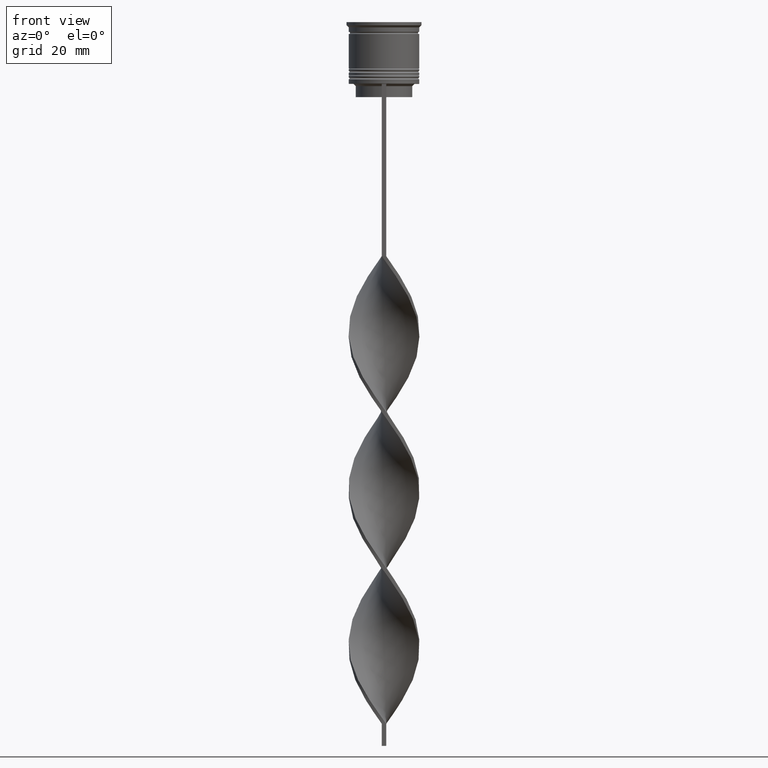
[diagram: clean part render]
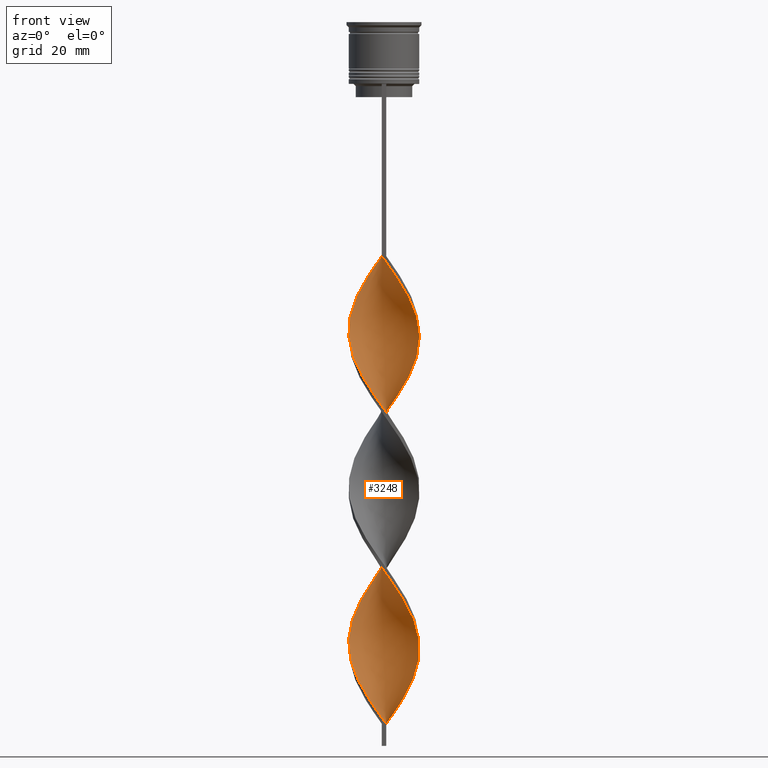
[diagram: same view with one face highlighted and labeled with its STEP entity id]
A machine part, front view. The second image highlights one B-rep face of the part: STEP entity #3248.
In plain terms, the highlighted face is a freeform B-spline surface patch.
Its self-contained STEP definition (entity closure, byte-faithful):
#8 = CARTESIAN_POINT ( 'NONE',  ( 2.152367326908981138, 7.721224960461567477, -85.97777777777777430 ) ) ;
#30 = CARTESIAN_POINT ( 'NONE',  ( -7.144131640230918734, -3.731105258425338800, -75.37777777777777999 ) ) ;
#37 = CARTESIAN_POINT ( 'NONE',  ( 7.553108702445512357, 2.812527737008065021, -75.37777777777777999 ) ) ;
#47 = CARTESIAN_POINT ( 'NONE',  ( -3.586635261345270997, -7.217742780431598781, -82.44444444444444287 ) ) ;
#56 = CARTESIAN_POINT ( 'NONE',  ( -6.803297758105514070, -4.321446859207497049, -113.0666666666666629 ) ) ;
#58 = CARTESIAN_POINT ( 'NONE',  ( 0.4999999999999989453, -7.999999999999996447, -88.33333333333332860 ) ) ;
#59 = ORIENTED_EDGE ( 'NONE', *, *, #777, .F. ) ;
#63 = CARTESIAN_POINT ( 'NONE',  ( 2.152367326908981138, 7.721224960461567477, -156.6444444444444457 ) ) ;
#72 = CARTESIAN_POINT ( 'NONE',  ( 2.963900771692545177, 7.495002038555971247, -155.4666666666666686 ) ) ;
#88 = CARTESIAN_POINT ( 'NONE',  ( 7.762960627548698866, -1.996607696852002345, -102.4666666666666686 ) ) ;
#91 = VERTEX_POINT ( 'NONE', #2606 ) ;
#97 = CARTESIAN_POINT ( 'NONE',  ( 5.610593300639727055, -5.724617263609565576, -133.0888888888889028 ) ) ;
#101 = CARTESIAN_POINT ( 'NONE',  ( -6.279723906998579963, 4.981472438132166225, -62.42222222222221717 ) ) ;
#107 = CARTESIAN_POINT ( 'NONE',  ( 5.610593300639725278, 5.724617263609557583, -114.2444444444444542 ) ) ;
#112 = CARTESIAN_POINT ( 'NONE',  ( -6.279723906998587957, -4.981472438132167113, -114.2444444444444542 ) ) ;
#114 = CARTESIAN_POINT ( 'NONE',  ( -7.178203230275506108, 3.566987298107779925, -64.77777777777778567 ) ) ;
#130 = CARTESIAN_POINT ( 'NONE',  ( 0.5000000000000008882, 8.000000000000003553, -88.33333333333332860 ) ) ;
#132 = CARTESIAN_POINT ( 'NONE',  ( -1.340833882125411103, 7.947447882367156602, -54.17777777777777715 ) ) ;
#142 = CARTESIAN_POINT ( 'NONE',  ( -7.763755626116584985, -2.164223167868968734, -143.6888888888888971 ) ) ;
#157 = CARTESIAN_POINT ( 'NONE',  ( -7.903910931312356780, -1.333488653825362746, -142.5111111111111200 ) ) ;
#191 = CARTESIAN_POINT ( 'NONE',  ( 7.762960627548706860, 1.996607696852002789, -74.20000000000000284 ) ) ;
#194 = CARTESIAN_POINT ( 'NONE',  ( -0.4999999999999998890, 7.999999999999996447, -123.6666666666666714 ) ) ;
#217 = B_SPLINE_CURVE_WITH_KNOTS ( 'NONE', 3,
 ( #1953, #3370, #785, #3305 ),
 .UNSPECIFIED., .F., .F.,
 ( 4, 4 ),
 ( 0.000000000000000000, 1.000000000000000000 ),
 .UNSPECIFIED. ) ;
#220 = CARTESIAN_POINT ( 'NONE',  ( -6.678203230275506996, -4.433012701892216079, -147.2222222222222285 ) ) ;
#240 = CARTESIAN_POINT ( 'NONE',  ( 0.5000000000000008882, 8.000000000000003553, -159.0000000000000000 ) ) ;
#252 = CARTESIAN_POINT ( 'NONE',  ( 7.553108702445513245, 2.812527737008064577, -146.0444444444443945 ) ) ;
#266 = CARTESIAN_POINT ( 'NONE',  ( 3.586635261345271442, -7.217742780431606775, -129.5555555555555429 ) ) ;
#287 = CARTESIAN_POINT ( 'NONE',  ( -2.007605570224932467, 7.805721184925816125, -91.86666666666666003 ) ) ;
#302 = CARTESIAN_POINT ( 'NONE',  ( 7.762960627548706860, 1.996607696852002789, -144.8666666666666742 ) ) ;
#315 = CARTESIAN_POINT ( 'NONE',  ( -8.008439394580010529, 0.3389667584570925096, -69.48888888888889426 ) ) ;
#321 = CARTESIAN_POINT ( 'NONE',  ( 8.044066236508134793, -0.5027541397817586466, -70.66666666666667140 ) ) ;
#323 =( BOUNDED_CURVE ( )  B_SPLINE_CURVE ( 2, ( #3481, #3199, #1150, #2561, #3498, #1445, #612, #1460, #912, #630, #2069, #1770, #860, #2316, #3446, #321, #1495, #2863, #2595, #37, #3147, #3754, #1208, #1187, #3461, #2335, #3556, #1585, #974, #2110, #130, #3010, #2972, #1845, #1566, #652, #1515, #2127, #2652, #3253, #3269, #992, #416, #2169, #375, #1545, #1017, #2144, #1812, #3029, #1298, #56, #112, #2409, #684, #1277, #3515, #667, #710, #2728, #3575, #956, #2955, #2424, #2688, #1224, #1826, #2366, #97, #1263, #2991, #2443, #3308, #1242, #3602, #933, #400, #2708, #3286, #1867, #2092, #727, #1886, #3235, #359, #1529, #2669, #72, #2389, #3536, #438 ),
 .UNSPECIFIED., .F., .T. ) 
 B_SPLINE_CURVE_WITH_KNOTS ( ( 3, 2, 2, 2, 2, 2, 2, 2, 2, 2, 2, 2, 2, 2, 2, 2, 2, 2, 2, 2, 2, 2, 2, 2, 2, 2, 2, 2, 2, 2, 2, 2, 2, 2, 2, 2, 2, 2, 2, 2, 2, 2, 2, 2, 2, 3 ),
 ( 0.000000000000000000, 0.01666666666666666644, 0.03333333333333333287, 0.05000000000000000971, 0.06666666666666666574, 0.08333333333333332871, 0.1000000000000000194, 0.1166666666666666546, 0.1333333333333333315, 0.1499999999999999944, 0.1666666666666666574, 0.1833333333333333204, 0.2000000000000000389, 0.2166666666666666741, 0.2333333333333333093, 0.2500000000000000000, 0.2666666666666666630, 0.2833333333333333259, 0.2999999999999999889, 0.3166666666666666519, 0.3333333333333333148, 0.3499999999999999223, 0.3666666666666666408, 0.3833333333333333592, 0.4000000000000000777, 0.4166666666666666852, 0.4333333333333333481, 0.4500000000000000111, 0.4666666666666666186, 0.4833333333333333370, 0.5000000000000000000, 0.5166666666666667185, 0.5333333333333333259, 0.5500000000000000444, 0.5666666666666666519, 0.5833333333333333703, 0.5999999999999999778, 0.6166666666666666963, 0.6333333333333333037, 0.6500000000000000222, 0.6666666666666666297, 0.6833333333333332371, 0.6999999999999998446, 0.7166666666666666741, 0.7333333333333332815, 0.7500000000000000000 ),
 .UNSPECIFIED. ) 
 CURVE ( )  GEOMETRIC_REPRESENTATION_ITEM ( )  RATIONAL_B_SPLINE_CURVE ( ( 1.000000000000000000, 0.9945218953682732899, 1.000000000000000000, 0.9945218953682732899, 1.000000000000000000, 0.9945218953682732899, 1.000000000000000000, 0.9945218953682732899, 1.000000000000000000, 0.9945218953682732899, 1.000000000000000000, 0.9945218953682732899, 1.000000000000000000, 0.9945218953682732899, 1.000000000000000000, 0.9945218953682732899, 1.000000000000000000, 0.9945218953682732899, 1.000000000000000000, 0.9945218953682732899, 1.000000000000000000, 0.9945218953682732899, 1.000000000000000000, 0.9945218953682732899, 1.000000000000000000, 0.9945218953682732899, 1.000000000000000000, 0.9945218953682732899, 1.000000000000000000, 0.9945218953682732899, 1.000000000000000000, 0.9945218953682732899, 1.000000000000000000, 0.9945218953682732899, 1.000000000000000000, 0.9945218953682732899, 1.000000000000000000, 0.9945218953682732899, 1.000000000000000000, 0.9945218953682732899, 1.000000000000000000, 0.9945218953682732899, 1.000000000000000000, 0.9945218953682732899, 1.000000000000000000, 0.9945218953682732899, 1.000000000000000000, 0.9945218953682732899, 1.000000000000000000, 0.9945218953682732899, 1.000000000000000000, 0.9945218953682732899, 1.000000000000000000, 0.9945218953682732899, 1.000000000000000000, 0.9945218953682732899, 1.000000000000000000, 0.9945218953682732899, 1.000000000000000000, 0.9945218953682732899, 1.000000000000000000, 0.9945218953682732899, 1.000000000000000000, 0.9945218953682732899, 1.000000000000000000, 0.9945218953682732899, 1.000000000000000000, 0.9945218953682732899, 1.000000000000000000, 0.9945218953682732899, 1.000000000000000000, 0.9945218953682732899, 1.000000000000000000, 0.9945218953682732899, 1.000000000000000000, 0.9945218953682732899, 1.000000000000000000, 0.9945218953682732899, 1.000000000000000000, 0.9945218953682732899, 1.000000000000000000, 0.9945218953682732899, 1.000000000000000000, 0.9945218953682732899, 1.000000000000000000, 0.9945218953682732899, 1.000000000000000000, 0.9945218953682732899, 1.000000000000000000, 0.9945218953682732899, 1.000000000000000000 ) ) 
 REPRESENTATION_ITEM ( '' )  );
#337 = CARTESIAN_POINT ( 'NONE',  ( 8.008439394580010529, -0.3389667584570969505, -104.8222222222222229 ) ) ;
#347 = CARTESIAN_POINT ( 'NONE',  ( -5.008911780959351745, -6.314314381860024028, -80.08888888888888857 ) ) ;
#354 = CARTESIAN_POINT ( 'NONE',  ( 1.340833882125414211, 7.947447882367162819, -157.8222222222221660 ) ) ;
#359 = CARTESIAN_POINT ( 'NONE',  ( 5.106790515527261931, 6.178243328853344707, -151.9333333333333371 ) ) ;
#360 = CARTESIAN_POINT ( 'NONE',  ( -5.610593300639724390, -5.724617263609558471, -78.91111111111111143 ) ) ;
#366 = CARTESIAN_POINT ( 'NONE',  ( -7.762960627548698866, 1.996607696852001457, -67.13333333333333997 ) ) ;
#375 = CARTESIAN_POINT ( 'NONE',  ( -7.903910931312363886, 1.333488653825370962, -104.8222222222222229 ) ) ;
#380 = CARTESIAN_POINT ( 'NONE',  ( 6.279723906998579075, -4.981472438132168001, -97.75555555555555998 ) ) ;
#392 = CARTESIAN_POINT ( 'NONE',  ( 4.457430975162857578, -6.714988640649844243, -94.22222222222221433 ) ) ;
#400 = CARTESIAN_POINT ( 'NONE',  ( 8.008439394580017634, 0.3389667584570904557, -142.5111111111111200 ) ) ;
#403 = CARTESIAN_POINT ( 'NONE',  ( 7.453943633173752303, 2.947664213147153767, -109.5333333333333456 ) ) ;
#410 = CARTESIAN_POINT ( 'NONE',  ( -8.008439394580010529, 0.3389667584570925096, -140.1555555555555657 ) ) ;
#416 = CARTESIAN_POINT ( 'NONE',  ( -7.453943633173757632, 2.947664213147157763, -102.4666666666666686 ) ) ;
#418 = CARTESIAN_POINT ( 'NONE',  ( -7.903910931312356780, -1.333488653825362746, -71.84444444444444855 ) ) ;
#429 = CARTESIAN_POINT ( 'NONE',  ( -6.678203230275506996, -4.433012701892216079, -147.2222222222222285 ) ) ;
#436 = CARTESIAN_POINT ( 'NONE',  ( 6.678203230275512325, -4.433012701892221408, -64.77777777777778567 ) ) ;
#438 = CARTESIAN_POINT ( 'NONE',  ( 0.5000000000000008882, 8.000000000000003553, -159.0000000000000000 ) ) ;
#441 = CARTESIAN_POINT ( 'NONE',  ( -7.553108702445505251, 2.812527737008064577, -136.6222222222222342 ) ) ;
#461 = CARTESIAN_POINT ( 'NONE',  ( 7.763755626116591202, -2.164223167868972286, -68.31111111111111711 ) ) ;
#473 = CARTESIAN_POINT ( 'NONE',  ( -7.903910931312356780, -1.333488653825362746, -142.5111111111111200 ) ) ;
#477 = CARTESIAN_POINT ( 'NONE',  ( 7.903910931312363886, -1.333488653825366521, -69.48888888888889426 ) ) ;
#487 = CARTESIAN_POINT ( 'NONE',  ( -4.297773521152310039, -6.766028581145813625, -151.9333333333333371 ) ) ;
#493 = CARTESIAN_POINT ( 'NONE',  ( 5.008911780959353521, -6.314314381860030245, -61.24444444444443292 ) ) ;
#498 = CARTESIAN_POINT ( 'NONE',  ( -7.762960627548698866, 1.996607696852001457, -137.8000000000000114 ) ) ;
#523 = CARTESIAN_POINT ( 'NONE',  ( -2.007605570224932023, -7.805721184925808132, -155.4666666666666686 ) ) ;
#538 = CARTESIAN_POINT ( 'NONE',  ( -0.3408338821254087714, 8.052552117632844286, -89.51111111111111995 ) ) ;
#553 =( BOUNDED_SURFACE ( )  B_SPLINE_SURFACE ( 1, 2, ( 
 ( #3659, #3371, #786, #2461, #3027, #3386, #1322, #493, #3067, #803, #436, #1034, #2185, #461, #477, #1647, #1630, #2785, #191, #1359, #2497, #2225, #2803, #3731, #1159, #1974, #3425, #2538, #8, #1124, #3125, #538, #1736, #287, #3693, #1103, #554, #2873, #3178, #838, #2029, #606, #3453, #870, #1704, #1718, #591, #3403, #2844, #822, #1400, #3193, #2327, #1992, #1179, #1416, #3140, #1751, #3473, #1143, #888, #2310, #2047, #2892, #2857, #266, #1765, #2604, #2295, #1454, #1436, #2574, #1470, #2255, #3439, #854, #2908, #2277, #302, #252, #2010, #2552, #2589, #3711, #3157, #3747, #572, #2344, #63, #354, #1488 ),
 ( #1835, #950, #983, #1234, #2380, #3490, #3528, #923, #2701, #2982, #1806, #662, #366, #3207, #315, #2106, #2625, #2084, #3246, #30, #905, #3566, #2964, #701, #1821, #47, #1859, #677, #1272, #1200, #3262, #1536, #1784, #2062, #2681, #392, #621, #2404, #3507, #643, #3226, #2932, #88, #2949, #337, #1522, #1560, #1257, #3550, #966, #1510, #2643, #107, #1217, #2121, #2660, #2416, #2134, #3278, #2359, #1314, #2762, #3021, #2217, #1934, #2159, #2179, #1065, #2237, #1641, #1028, #3614, #3364, #781, #410, #1083, #473, #142, #2736, #3077, #429, #2455, #3319, #1597, #487, #2199, #3381, #738, #1288, #1899, #2490 ) ),
 .UNSPECIFIED., .F., .F., .F. ) 
 B_SPLINE_SURFACE_WITH_KNOTS ( ( 2, 2 ),
 ( 3, 2, 2, 2, 2, 2, 2, 2, 2, 2, 2, 2, 2, 2, 2, 2, 2, 2, 2, 2, 2, 2, 2, 2, 2, 2, 2, 2, 2, 2, 2, 2, 2, 2, 2, 2, 2, 2, 2, 2, 2, 2, 2, 2, 2, 3 ),
 ( 0.000000000000000000, 1.000000000000000000 ),
 ( 0.000000000000000000, 0.01666666666666666644, 0.03333333333333333287, 0.05000000000000000278, 0.06666666666666666574, 0.08333333333333332871, 0.1000000000000000056, 0.1166666666666666685, 0.1333333333333333315, 0.1499999999999999944, 0.1666666666666666574, 0.1833333333333333204, 0.2000000000000000111, 0.2166666666666666741, 0.2333333333333333370, 0.2500000000000000000, 0.2666666666666666630, 0.2833333333333333259, 0.2999999999999999889, 0.3166666666666666519, 0.3333333333333333148, 0.3499999999999999778, 0.3666666666666666408, 0.3833333333333333592, 0.4000000000000000222, 0.4166666666666666852, 0.4333333333333333481, 0.4500000000000000111, 0.4666666666666666741, 0.4833333333333333370, 0.5000000000000000000, 0.5166666666666667185, 0.5333333333333333259, 0.5500000000000000444, 0.5666666666666666519, 0.5833333333333333703, 0.5999999999999999778, 0.6166666666666666963, 0.6333333333333333037, 0.6500000000000000222, 0.6666666666666666297, 0.6833333333333333481, 0.6999999999999999556, 0.7166666666666666741, 0.7333333333333332815, 0.7500000000000000000 ),
 .UNSPECIFIED. ) 
 GEOMETRIC_REPRESENTATION_ITEM ( )  RATIONAL_B_SPLINE_SURFACE ( (
 ( 1.000000000000000000, 0.9945218953682732899, 1.000000000000000000, 0.9945218953682732899, 1.000000000000000000, 0.9945218953682732899, 1.000000000000000000, 0.9945218953682732899, 1.000000000000000000, 0.9945218953682732899, 1.000000000000000000, 0.9945218953682732899, 1.000000000000000000, 0.9945218953682732899, 1.000000000000000000, 0.9945218953682732899, 1.000000000000000000, 0.9945218953682732899, 1.000000000000000000, 0.9945218953682732899, 1.000000000000000000, 0.9945218953682732899, 1.000000000000000000, 0.9945218953682732899, 1.000000000000000000, 0.9945218953682732899, 1.000000000000000000, 0.9945218953682732899, 1.000000000000000000, 0.9945218953682732899, 1.000000000000000000, 0.9945218953682732899, 1.000000000000000000, 0.9945218953682732899, 1.000000000000000000, 0.9945218953682732899, 1.000000000000000000, 0.9945218953682732899, 1.000000000000000000, 0.9945218953682732899, 1.000000000000000000, 0.9945218953682732899, 1.000000000000000000, 0.9945218953682732899, 1.000000000000000000, 0.9945218953682732899, 1.000000000000000000, 0.9945218953682732899, 1.000000000000000000, 0.9945218953682732899, 1.000000000000000000, 0.9945218953682732899, 1.000000000000000000, 0.9945218953682732899, 1.000000000000000000, 0.9945218953682732899, 1.000000000000000000, 0.9945218953682732899, 1.000000000000000000, 0.9945218953682732899, 1.000000000000000000, 0.9945218953682732899, 1.000000000000000000, 0.9945218953682732899, 1.000000000000000000, 0.9945218953682732899, 1.000000000000000000, 0.9945218953682732899, 1.000000000000000000, 0.9945218953682732899, 1.000000000000000000, 0.9945218953682732899, 1.000000000000000000, 0.9945218953682732899, 1.000000000000000000, 0.9945218953682732899, 1.000000000000000000, 0.9945218953682732899, 1.000000000000000000, 0.9945218953682732899, 1.000000000000000000, 0.9945218953682732899, 1.000000000000000000, 0.9945218953682732899, 1.000000000000000000, 0.9945218953682732899, 1.000000000000000000, 0.9945218953682732899, 1.000000000000000000, 0.9945218953682732899, 1.000000000000000000),
 ( 1.000000000000000000, 0.9945218953682732899, 1.000000000000000000, 0.9945218953682732899, 1.000000000000000000, 0.9945218953682732899, 1.000000000000000000, 0.9945218953682732899, 1.000000000000000000, 0.9945218953682732899, 1.000000000000000000, 0.9945218953682732899, 1.000000000000000000, 0.9945218953682732899, 1.000000000000000000, 0.9945218953682732899, 1.000000000000000000, 0.9945218953682732899, 1.000000000000000000, 0.9945218953682732899, 1.000000000000000000, 0.9945218953682732899, 1.000000000000000000, 0.9945218953682732899, 1.000000000000000000, 0.9945218953682732899, 1.000000000000000000, 0.9945218953682732899, 1.000000000000000000, 0.9945218953682732899, 1.000000000000000000, 0.9945218953682732899, 1.000000000000000000, 0.9945218953682732899, 1.000000000000000000, 0.9945218953682732899, 1.000000000000000000, 0.9945218953682732899, 1.000000000000000000, 0.9945218953682732899, 1.000000000000000000, 0.9945218953682732899, 1.000000000000000000, 0.9945218953682732899, 1.000000000000000000, 0.9945218953682732899, 1.000000000000000000, 0.9945218953682732899, 1.000000000000000000, 0.9945218953682732899, 1.000000000000000000, 0.9945218953682732899, 1.000000000000000000, 0.9945218953682732899, 1.000000000000000000, 0.9945218953682732899, 1.000000000000000000, 0.9945218953682732899, 1.000000000000000000, 0.9945218953682732899, 1.000000000000000000, 0.9945218953682732899, 1.000000000000000000, 0.9945218953682732899, 1.000000000000000000, 0.9945218953682732899, 1.000000000000000000, 0.9945218953682732899, 1.000000000000000000, 0.9945218953682732899, 1.000000000000000000, 0.9945218953682732899, 1.000000000000000000, 0.9945218953682732899, 1.000000000000000000, 0.9945218953682732899, 1.000000000000000000, 0.9945218953682732899, 1.000000000000000000, 0.9945218953682732899, 1.000000000000000000, 0.9945218953682732899, 1.000000000000000000, 0.9945218953682732899, 1.000000000000000000, 0.9945218953682732899, 1.000000000000000000, 0.9945218953682732899, 1.000000000000000000, 0.9945218953682732899, 1.000000000000000000) ) ) 
 REPRESENTATION_ITEM ( '' )  SURFACE ( )  );
#554 = CARTESIAN_POINT ( 'NONE',  ( -4.297773521152312703, 6.766028581145818954, -95.40000000000000568 ) ) ;
#572 = CARTESIAN_POINT ( 'NONE',  ( 3.710665873427705375, 7.104995339602909077, -154.2888888888888914 ) ) ;
#591 = CARTESIAN_POINT ( 'NONE',  ( -8.008439394580017634, -0.3389667584570877357, -107.1777777777777771 ) ) ;
#606 = CARTESIAN_POINT ( 'NONE',  ( -7.144131640230920510, 3.731105258425349014, -101.2888888888888914 ) ) ;
#612 = CARTESIAN_POINT ( 'NONE',  ( 4.297773521152313592, -6.766028581145818954, -60.06666666666666288 ) ) ;
#621 = CARTESIAN_POINT ( 'NONE',  ( 5.106790515527256602, -6.178243328853340266, -95.40000000000000568 ) ) ;
#630 = CARTESIAN_POINT ( 'NONE',  ( 6.212274820320101476, -5.134920145359100019, -63.60000000000000142 ) ) ;
#643 = CARTESIAN_POINT ( 'NONE',  ( 6.803297758105506965, -4.321446859207495272, -98.93333333333332291 ) ) ;
#652 = CARTESIAN_POINT ( 'NONE',  ( -3.586635261345270109, 7.217742780431608551, -94.22222222222221433 ) ) ;
#653 = CARTESIAN_POINT ( 'NONE',  ( 7.553108702445503475, -2.812527737008069018, -101.2888888888888914 ) ) ;
#662 = CARTESIAN_POINT ( 'NONE',  ( -7.553108702445506140, 2.812527737008064133, -65.95555555555556282 ) ) ;
#664 = ORIENTED_EDGE ( 'NONE', *, *, #2926, .T. ) ;
#667 = CARTESIAN_POINT ( 'NONE',  ( -2.963900771692546510, -7.495002038555971247, -120.1333333333333400 ) ) ;
#669 = CARTESIAN_POINT ( 'NONE',  ( -8.008439394580010529, 0.3389667584570925096, -69.48888888888889426 ) ) ;
#677 = CARTESIAN_POINT ( 'NONE',  ( -2.007605570224932023, -7.805721184925808132, -84.79999999999998295 ) ) ;
#684 = CARTESIAN_POINT ( 'NONE',  ( -5.106790515527262819, -6.178243328853344707, -116.6000000000000085 ) ) ;
#689 = CARTESIAN_POINT ( 'NONE',  ( 7.903910931312356780, 1.333488653825360082, -107.1777777777777771 ) ) ;
#701 = CARTESIAN_POINT ( 'NONE',  ( -5.008911780959350857, -6.314314381860024028, -80.08888888888890278 ) ) ;
#710 = CARTESIAN_POINT ( 'NONE',  ( -2.152367326908982026, -7.721224960461567477, -121.3111111111111171 ) ) ;
#712 = CARTESIAN_POINT ( 'NONE',  ( -2.797120415785101954, -7.511731982678703012, -83.62222222222222001 ) ) ;
#727 = CARTESIAN_POINT ( 'NONE',  ( 6.803297758105513182, 4.321446859207497937, -148.4000000000000057 ) ) ;
#729 = CARTESIAN_POINT ( 'NONE',  ( -4.297773521152310039, -6.766028581145813625, -81.26666666666666572 ) ) ;
#738 = CARTESIAN_POINT ( 'NONE',  ( -2.007605570224932023, -7.805721184925808132, -155.4666666666666686 ) ) ;
#772 = CARTESIAN_POINT ( 'NONE',  ( -3.710665873427700490, 7.104995339602903748, -128.3777777777777942 ) ) ;
#777 = EDGE_CURVE ( 'NONE', #2960, #1990, #217, .T. ) ;
#781 = CARTESIAN_POINT ( 'NONE',  ( -7.972812552651889817, 1.180687656695941001, -138.9777777777777885 ) ) ;
#785 = CARTESIAN_POINT ( 'NONE',  ( 0.4999999999999995559, -2.666666666666663410, -159.0000000000000000 ) ) ;
#786 = CARTESIAN_POINT ( 'NONE',  ( 1.174219726175172562, -7.929136651279328873, -55.35555555555555429 ) ) ;
#803 = CARTESIAN_POINT ( 'NONE',  ( 6.212274820320101476, -5.134920145359099131, -63.60000000000000853 ) ) ;
#808 = CARTESIAN_POINT ( 'NONE',  ( -2.152367326908976697, 7.721224960461563036, -126.0222222222222257 ) ) ;
#822 = CARTESIAN_POINT ( 'NONE',  ( -7.553108702445514133, -2.812527737008061912, -110.7111111111110944 ) ) ;
#838 = CARTESIAN_POINT ( 'NONE',  ( -6.212274820320100588, 5.134920145359100019, -98.93333333333332291 ) ) ;
#854 = CARTESIAN_POINT ( 'NONE',  ( 8.044066236508134793, -0.5027541397817586466, -141.3333333333333428 ) ) ;
#860 = CARTESIAN_POINT ( 'NONE',  ( 7.453943633173757632, -2.947664213147156875, -67.13333333333333997 ) ) ;
#870 = CARTESIAN_POINT ( 'NONE',  ( -7.763755626116591202, 2.164223167868974951, -103.6444444444444457 ) ) ;
#888 = CARTESIAN_POINT ( 'NONE',  ( -0.4999999999999998890, -8.000000000000003553, -123.6666666666666714 ) ) ;
#905 = CARTESIAN_POINT ( 'NONE',  ( -6.678203230275506996, -4.433012701892216079, -76.55555555555555713 ) ) ;
#912 = CARTESIAN_POINT ( 'NONE',  ( 5.610593300639727055, -5.724617263609565576, -62.42222222222221717 ) ) ;
#923 = CARTESIAN_POINT ( 'NONE',  ( -5.756150055891653849, 5.641498017056839842, -61.24444444444443292 ) ) ;
#933 = CARTESIAN_POINT ( 'NONE',  ( 8.044066236508134793, -0.5027541397817586466, -141.3333333333333428 ) ) ;
#936 = CARTESIAN_POINT ( 'NONE',  ( 6.803297758105506965, -4.321446859207495272, -98.93333333333332291 ) ) ;
#950 = CARTESIAN_POINT ( 'NONE',  ( -1.340833882125411103, 7.947447882367156602, -54.17777777777777715 ) ) ;
#956 = CARTESIAN_POINT ( 'NONE',  ( 0.3408338821254121020, -8.052552117632842510, -124.8444444444444343 ) ) ;
#959 = CARTESIAN_POINT ( 'NONE',  ( -7.144131640230919622, -3.731105258425339244, -75.37777777777777999 ) ) ;
#966 = CARTESIAN_POINT ( 'NONE',  ( 7.144131640230919622, 3.731105258425336135, -110.7111111111110944 ) ) ;
#974 = CARTESIAN_POINT ( 'NONE',  ( 2.152367326908981138, 7.721224960461567477, -85.97777777777777430 ) ) ;
#977 = CARTESIAN_POINT ( 'NONE',  ( 8.008439394580010529, -0.3389667584570969505, -104.8222222222222229 ) ) ;
#983 = CARTESIAN_POINT ( 'NONE',  ( -2.152367326908976697, 7.721224960461563036, -55.35555555555555429 ) ) ;
#992 = CARTESIAN_POINT ( 'NONE',  ( -7.144131640230921398, 3.731105258425349014, -101.2888888888888914 ) ) ;
#996 = CARTESIAN_POINT ( 'NONE',  ( -7.762960627548698866, 1.996607696852001457, -67.13333333333333997 ) ) ;
#1017 = CARTESIAN_POINT ( 'NONE',  ( -8.008439394580017634, -0.3389667584570877357, -107.1777777777777771 ) ) ;
#1020 = CARTESIAN_POINT ( 'NONE',  ( -0.4999999999999998890, 7.999999999999996447, -53.00000000000000000 ) ) ;
#1028 = CARTESIAN_POINT ( 'NONE',  ( -7.178203230275506108, 3.566987298107779925, -135.4444444444444571 ) ) ;
#1034 = CARTESIAN_POINT ( 'NONE',  ( 7.144131640230924063, -3.731105258425344129, -65.95555555555556282 ) ) ;
#1040 = CARTESIAN_POINT ( 'NONE',  ( 3.586635261345272330, 7.217742780431597893, -117.7777777777777857 ) ) ;
#1052 = FACE_OUTER_BOUND ( 'NONE', #3685, .T. ) ;
#1055 = CARTESIAN_POINT ( 'NONE',  ( -3.586635261345271442, -7.217742780431598781, -153.1111111111111143 ) ) ;
#1065 = CARTESIAN_POINT ( 'NONE',  ( -5.756150055891653849, 5.641498017056839842, -131.9111111111111256 ) ) ;
#1075 = CARTESIAN_POINT ( 'NONE',  ( -5.610593300639724390, -5.724617263609558471, -149.5777777777777828 ) ) ;
#1083 = CARTESIAN_POINT ( 'NONE',  ( -8.044066236508127687, -0.5027541397817575364, -141.3333333333333428 ) ) ;
#1089 = CARTESIAN_POINT ( 'NONE',  ( 0.4999999999999989453, -7.999999999999996447, -159.0000000000000000 ) ) ;
#1090 = CARTESIAN_POINT ( 'NONE',  ( -7.453943633173752303, -2.947664213147154655, -144.8666666666666742 ) ) ;
#1103 = CARTESIAN_POINT ( 'NONE',  ( -3.586635261345269665, 7.217742780431608551, -94.22222222222221433 ) ) ;
#1124 = CARTESIAN_POINT ( 'NONE',  ( 1.340833882125414211, 7.947447882367162819, -87.15555555555553724 ) ) ;
#1143 = CARTESIAN_POINT ( 'NONE',  ( -1.340833882125418652, -7.947447882367162819, -122.4888888888888800 ) ) ;
#1150 = CARTESIAN_POINT ( 'NONE',  ( 1.174219726175172562, -7.929136651279328873, -55.35555555555555429 ) ) ;
#1159 = CARTESIAN_POINT ( 'NONE',  ( 5.106790515527261931, 6.178243328853344707, -81.26666666666666572 ) ) ;
#1179 = CARTESIAN_POINT ( 'NONE',  ( -5.106790515527262819, -6.178243328853344707, -116.6000000000000085 ) ) ;
#1187 = CARTESIAN_POINT ( 'NONE',  ( 5.756150055891660067, 5.641498017056842507, -80.08888888888888857 ) ) ;
#1200 = CARTESIAN_POINT ( 'NONE',  ( -0.3408338821254136564, -8.052552117632835404, -87.15555555555553724 ) ) ;
#1208 = CARTESIAN_POINT ( 'NONE',  ( 6.279723906998587069, 4.981472438132168001, -78.91111111111111143 ) ) ;
#1217 = CARTESIAN_POINT ( 'NONE',  ( 5.008911780959354410, 6.314314381860021363, -115.4222222222222456 ) ) ;
#1224 = CARTESIAN_POINT ( 'NONE',  ( 3.586635261345271886, -7.217742780431606775, -129.5555555555555429 ) ) ;
#1234 = CARTESIAN_POINT ( 'NONE',  ( -2.963900771692542513, 7.495002038555964141, -56.53333333333331723 ) ) ;
#1242 = CARTESIAN_POINT ( 'NONE',  ( 7.763755626116591202, -2.164223167868972286, -138.9777777777777885 ) ) ;
#1247 = CARTESIAN_POINT ( 'NONE',  ( -2.152367326908976697, 7.721224960461563036, -55.35555555555555429 ) ) ;
#1257 = CARTESIAN_POINT ( 'NONE',  ( 7.763755626116586761, 2.164223167868963404, -108.3555555555555543 ) ) ;
#1263 = CARTESIAN_POINT ( 'NONE',  ( 6.212274820320101476, -5.134920145359100019, -134.2666666666666515 ) ) ;
#1265 = CARTESIAN_POINT ( 'NONE',  ( -7.763755626116585873, -2.164223167868968734, -73.02222222222221149 ) ) ;
#1272 = CARTESIAN_POINT ( 'NONE',  ( -1.174219726175174561, -7.929136651279319992, -85.97777777777777430 ) ) ;
#1277 = CARTESIAN_POINT ( 'NONE',  ( -4.457430975162866460, -6.714988640649845131, -117.7777777777777857 ) ) ;
#1288 = CARTESIAN_POINT ( 'NONE',  ( -1.174219726175174561, -7.929136651279319992, -156.6444444444444457 ) ) ;
#1298 = CARTESIAN_POINT ( 'NONE',  ( -7.178203230275514990, -3.566987298107776816, -111.8888888888888999 ) ) ;
#1302 = CARTESIAN_POINT ( 'NONE',  ( -5.756150055891653849, 5.641498017056839842, -61.24444444444443292 ) ) ;
#1314 = CARTESIAN_POINT ( 'NONE',  ( -0.4999999999999998890, 7.999999999999996447, -123.6666666666666714 ) ) ;
#1322 = CARTESIAN_POINT ( 'NONE',  ( 4.297773521152313592, -6.766028581145818954, -60.06666666666666288 ) ) ;
#1328 = CARTESIAN_POINT ( 'NONE',  ( -4.297773521152310039, -6.766028581145813625, -151.9333333333333371 ) ) ;
#1359 = CARTESIAN_POINT ( 'NONE',  ( 7.553108702445513245, 2.812527737008064577, -75.37777777777777999 ) ) ;
#1363 = CARTESIAN_POINT ( 'NONE',  ( 2.007605570224933356, 7.805721184925808132, -120.1333333333333400 ) ) ;
#1389 = CARTESIAN_POINT ( 'NONE',  ( -1.340833882125411103, 7.947447882367156602, -124.8444444444444343 ) ) ;
#1400 = CARTESIAN_POINT ( 'NONE',  ( -7.178203230275514990, -3.566987298107776816, -111.8888888888888999 ) ) ;
#1405 = CARTESIAN_POINT ( 'NONE',  ( -5.106790515527257490, 6.178243328853340266, -130.7333333333333485 ) ) ;
#1416 = CARTESIAN_POINT ( 'NONE',  ( -4.457430975162865572, -6.714988640649846019, -117.7777777777777999 ) ) ;
#1436 = CARTESIAN_POINT ( 'NONE',  ( 6.678203230275512325, -4.433012701892221408, -135.4444444444444571 ) ) ;
#1445 = CARTESIAN_POINT ( 'NONE',  ( 3.586635261345271886, -7.217742780431606775, -58.88888888888888573 ) ) ;
#1454 = CARTESIAN_POINT ( 'NONE',  ( 6.212274820320101476, -5.134920145359099131, -134.2666666666666231 ) ) ;
#1460 = CARTESIAN_POINT ( 'NONE',  ( 5.008911780959354410, -6.314314381860031133, -61.24444444444443292 ) ) ;
#1470 = CARTESIAN_POINT ( 'NONE',  ( 7.453943633173757632, -2.947664213147156875, -137.8000000000000114 ) ) ;
#1488 = CARTESIAN_POINT ( 'NONE',  ( 0.5000000000000008882, 8.000000000000003553, -159.0000000000000000 ) ) ;
#1495 = CARTESIAN_POINT ( 'NONE',  ( 8.008439394580017634, 0.3389667584570904557, -71.84444444444444855 ) ) ;
#1510 = CARTESIAN_POINT ( 'NONE',  ( 6.678203230275510549, 4.433012701892212526, -111.8888888888888999 ) ) ;
#1515 = CARTESIAN_POINT ( 'NONE',  ( -4.297773521152312703, 6.766028581145818954, -95.40000000000000568 ) ) ;
#1516 = CARTESIAN_POINT ( 'NONE',  ( -1.174219726175174561, -7.929136651279319992, -85.97777777777777430 ) ) ;
#1522 = CARTESIAN_POINT ( 'NONE',  ( 8.044066236508127687, 0.5027541397817566482, -106.0000000000000000 ) ) ;
#1529 = CARTESIAN_POINT ( 'NONE',  ( 4.457430975162866460, 6.714988640649846019, -153.1111111111111143 ) ) ;
#1530 = CARTESIAN_POINT ( 'NONE',  ( 3.710665873427697381, -7.104995339602904636, -93.04444444444443718 ) ) ;
#1536 = CARTESIAN_POINT ( 'NONE',  ( 1.340833882125408216, -7.947447882367158378, -89.51111111111111995 ) ) ;
#1545 = CARTESIAN_POINT ( 'NONE',  ( -8.044066236508134793, 0.5027541397817596458, -106.0000000000000000 ) ) ;
#1548 = ORIENTED_EDGE ( 'NONE', *, *, #3517, .F. ) ;
#1560 = CARTESIAN_POINT ( 'NONE',  ( 7.903910931312356780, 1.333488653825360082, -107.1777777777777771 ) ) ;
#1566 = CARTESIAN_POINT ( 'NONE',  ( -2.797120415785099734, 7.511731982678712782, -93.04444444444443718 ) ) ;
#1569 = CARTESIAN_POINT ( 'NONE',  ( 7.144131640230920510, 3.731105258425336579, -110.7111111111111086 ) ) ;
#1585 = CARTESIAN_POINT ( 'NONE',  ( 2.963900771692545177, 7.495002038555971247, -84.79999999999998295 ) ) ;
#1597 = CARTESIAN_POINT ( 'NONE',  ( -5.008911780959350857, -6.314314381860024028, -150.7555555555555600 ) ) ;
#1630 = CARTESIAN_POINT ( 'NONE',  ( 8.008439394580017634, 0.3389667584570904557, -71.84444444444444855 ) ) ;
#1641 = CARTESIAN_POINT ( 'NONE',  ( -6.803297758105507853, 4.321446859207494384, -134.2666666666666231 ) ) ;
#1647 = CARTESIAN_POINT ( 'NONE',  ( 8.044066236508134793, -0.5027541397817586466, -70.66666666666667140 ) ) ;
#1668 = CARTESIAN_POINT ( 'NONE',  ( -8.044066236508127687, -0.5027541397817575364, -141.3333333333333428 ) ) ;
#1691 = CARTESIAN_POINT ( 'NONE',  ( -7.178203230275506108, 3.566987298107779925, -135.4444444444444571 ) ) ;
#1704 = CARTESIAN_POINT ( 'NONE',  ( -7.903910931312363886, 1.333488653825370962, -104.8222222222222229 ) ) ;
#1718 = CARTESIAN_POINT ( 'NONE',  ( -8.044066236508134793, 0.5027541397817596458, -106.0000000000000000 ) ) ;
#1736 = CARTESIAN_POINT ( 'NONE',  ( -1.174219726175170564, 7.929136651279328873, -90.68888888888888289 ) ) ;
#1745 = VECTOR ( 'NONE', #2351, 1000.000000000000000 ) ;
#1751 = CARTESIAN_POINT ( 'NONE',  ( -2.963900771692546510, -7.495002038555971247, -120.1333333333333400 ) ) ;
#1765 = CARTESIAN_POINT ( 'NONE',  ( 4.297773521152313592, -6.766028581145818954, -130.7333333333333485 ) ) ;
#1770 = CARTESIAN_POINT ( 'NONE',  ( 7.144131640230924063, -3.731105258425344129, -65.95555555555556282 ) ) ;
#1784 = CARTESIAN_POINT ( 'NONE',  ( 2.152367326908974476, -7.721224960461563036, -90.68888888888888289 ) ) ;
#1806 = CARTESIAN_POINT ( 'NONE',  ( -7.178203230275506108, 3.566987298107779925, -64.77777777777778567 ) ) ;
#1812 = CARTESIAN_POINT ( 'NONE',  ( -7.762960627548706860, -1.996607696852001901, -109.5333333333333456 ) ) ;
#1813 = CARTESIAN_POINT ( 'NONE',  ( -3.586635261345271442, -7.217742780431598781, -82.44444444444444287 ) ) ;
#1821 = CARTESIAN_POINT ( 'NONE',  ( -4.297773521152310039, -6.766028581145813625, -81.26666666666666572 ) ) ;
#1826 = CARTESIAN_POINT ( 'NONE',  ( 4.297773521152313592, -6.766028581145818954, -130.7333333333333485 ) ) ;
#1829 = CARTESIAN_POINT ( 'NONE',  ( -2.007605570224932023, -7.805721184925808132, -84.79999999999998295 ) ) ;
#1835 = CARTESIAN_POINT ( 'NONE',  ( -0.4999999999999998890, 7.999999999999996447, -53.00000000000000000 ) ) ;
#1845 = CARTESIAN_POINT ( 'NONE',  ( -2.007605570224932467, 7.805721184925816125, -91.86666666666666003 ) ) ;
#1859 = CARTESIAN_POINT ( 'NONE',  ( -2.797120415785101954, -7.511731982678703012, -83.62222222222222001 ) ) ;
#1867 = CARTESIAN_POINT ( 'NONE',  ( 7.553108702445512357, 2.812527737008065021, -146.0444444444444230 ) ) ;
#1886 = CARTESIAN_POINT ( 'NONE',  ( 6.279723906998587069, 4.981472438132168001, -149.5777777777777828 ) ) ;
#1889 = CARTESIAN_POINT ( 'NONE',  ( 2.797120415785105951, 7.511731982678701236, -118.9555555555555628 ) ) ;
#1899 = CARTESIAN_POINT ( 'NONE',  ( -0.3408338821254136564, -8.052552117632835404, -157.8222222222221660 ) ) ;
#1928 = CARTESIAN_POINT ( 'NONE',  ( -4.457430975162859355, 6.714988640649843354, -129.5555555555555429 ) ) ;
#1934 = CARTESIAN_POINT ( 'NONE',  ( -3.710665873427700490, 7.104995339602903748, -128.3777777777777942 ) ) ;
#1942 = CARTESIAN_POINT ( 'NONE',  ( 4.297773521152310927, 6.766028581145813625, -116.6000000000000085 ) ) ;
#1953 = CARTESIAN_POINT ( 'NONE',  ( 0.5000000000000008882, 8.000000000000003553, -159.0000000000000000 ) ) ;
#1974 = CARTESIAN_POINT ( 'NONE',  ( 4.457430975162865572, 6.714988640649846907, -82.44444444444444287 ) ) ;
#1990 = VERTEX_POINT ( 'NONE', #1089 ) ;
#1992 = CARTESIAN_POINT ( 'NONE',  ( -5.756150055891663619, -5.641498017056838954, -115.4222222222222456 ) ) ;
#2010 = CARTESIAN_POINT ( 'NONE',  ( 7.178203230275513214, 3.566987298107780813, -147.2222222222222285 ) ) ;
#2017 = CARTESIAN_POINT ( 'NONE',  ( -0.4999999999999998890, -8.000000000000003553, -53.00000000000000000 ) ) ;
#2029 = CARTESIAN_POINT ( 'NONE',  ( -6.678203230275511437, 4.433012701892224072, -100.1111111111111143 ) ) ;
#2047 = CARTESIAN_POINT ( 'NONE',  ( 1.174219726175172562, -7.929136651279328873, -126.0222222222222257 ) ) ;
#2062 = CARTESIAN_POINT ( 'NONE',  ( 2.963900771692541625, -7.495002038555965029, -91.86666666666666003 ) ) ;
#2069 = CARTESIAN_POINT ( 'NONE',  ( 6.678203230275512325, -4.433012701892221408, -64.77777777777778567 ) ) ;
#2084 = CARTESIAN_POINT ( 'NONE',  ( -7.763755626116584985, -2.164223167868968734, -73.02222222222219727 ) ) ;
#2092 = CARTESIAN_POINT ( 'NONE',  ( 7.178203230275513214, 3.566987298107780813, -147.2222222222222285 ) ) ;
#2094 = CARTESIAN_POINT ( 'NONE',  ( 5.756150055891652073, -5.641498017056840730, -96.57777777777776862 ) ) ;
#2106 = CARTESIAN_POINT ( 'NONE',  ( -8.044066236508127687, -0.5027541397817575364, -70.66666666666667140 ) ) ;
#2110 = CARTESIAN_POINT ( 'NONE',  ( 1.340833882125414211, 7.947447882367163707, -87.15555555555553724 ) ) ;
#2113 = CARTESIAN_POINT ( 'NONE',  ( -6.678203230275506996, -4.433012701892216079, -76.55555555555555713 ) ) ;
#2121 = CARTESIAN_POINT ( 'NONE',  ( 4.297773521152310927, 6.766028581145813625, -116.6000000000000085 ) ) ;
#2127 = CARTESIAN_POINT ( 'NONE',  ( -5.008911780959351745, 6.314314381860032022, -96.57777777777776862 ) ) ;
#2130 = CARTESIAN_POINT ( 'NONE',  ( 8.044066236508127687, 0.5027541397817566482, -106.0000000000000000 ) ) ;
#2134 = CARTESIAN_POINT ( 'NONE',  ( 2.007605570224933356, 7.805721184925808132, -120.1333333333333400 ) ) ;
#2144 = CARTESIAN_POINT ( 'NONE',  ( -7.972812552651899587, -1.180687656695935006, -108.3555555555555543 ) ) ;
#2159 = CARTESIAN_POINT ( 'NONE',  ( -4.457430975162859355, 6.714988640649843354, -129.5555555555555429 ) ) ;
#2169 = CARTESIAN_POINT ( 'NONE',  ( -7.763755626116591202, 2.164223167868974951, -103.6444444444444457 ) ) ;
#2179 = CARTESIAN_POINT ( 'NONE',  ( -5.106790515527257490, 6.178243328853340266, -130.7333333333333485 ) ) ;
#2185 = CARTESIAN_POINT ( 'NONE',  ( 7.453943633173757632, -2.947664213147156875, -67.13333333333333997 ) ) ;
#2190 = CARTESIAN_POINT ( 'NONE',  ( -6.279723906998579963, 4.981472438132166225, -133.0888888888889028 ) ) ;
#2199 = CARTESIAN_POINT ( 'NONE',  ( -3.586635261345270997, -7.217742780431598781, -153.1111111111110858 ) ) ;
#2217 = CARTESIAN_POINT ( 'NONE',  ( -2.963900771692542513, 7.495002038555964141, -127.2000000000000171 ) ) ;
#2225 = CARTESIAN_POINT ( 'NONE',  ( 6.803297758105512294, 4.321446859207497937, -77.73333333333333428 ) ) ;
#2228 = CARTESIAN_POINT ( 'NONE',  ( 5.008911780959355298, 6.314314381860021363, -115.4222222222222314 ) ) ;
#2237 = CARTESIAN_POINT ( 'NONE',  ( -6.279723906998579963, 4.981472438132166225, -133.0888888888889028 ) ) ;
#2245 = CARTESIAN_POINT ( 'NONE',  ( -2.797120415785101954, -7.511731982678703012, -154.2888888888888914 ) ) ;
#2255 = CARTESIAN_POINT ( 'NONE',  ( 7.763755626116591202, -2.164223167868972286, -138.9777777777777885 ) ) ;
#2277 = CARTESIAN_POINT ( 'NONE',  ( 7.972812552651896922, 1.180687656695939669, -143.6888888888888971 ) ) ;
#2295 = CARTESIAN_POINT ( 'NONE',  ( 5.610593300639727055, -5.724617263609565576, -133.0888888888889028 ) ) ;
#2310 = CARTESIAN_POINT ( 'NONE',  ( 0.3408338821254121020, -8.052552117632842510, -124.8444444444444343 ) ) ;
#2316 = CARTESIAN_POINT ( 'NONE',  ( 7.763755626116591202, -2.164223167868972286, -68.31111111111111711 ) ) ;
#2327 = CARTESIAN_POINT ( 'NONE',  ( -6.279723906998587957, -4.981472438132167113, -114.2444444444444542 ) ) ;
#2335 = CARTESIAN_POINT ( 'NONE',  ( 4.457430975162866460, 6.714988640649846019, -82.44444444444444287 ) ) ;
#2344 = CARTESIAN_POINT ( 'NONE',  ( 2.963900771692545177, 7.495002038555971247, -155.4666666666666686 ) ) ;
#2351 = DIRECTION ( 'NONE',  ( 0.000000000000000000, 1.000000000000000000, 0.000000000000000000 ) ) ;
#2359 = CARTESIAN_POINT ( 'NONE',  ( 0.3408338821254181528, 8.052552117632835404, -122.4888888888888800 ) ) ;
#2366 = CARTESIAN_POINT ( 'NONE',  ( 5.008911780959354410, -6.314314381860031133, -131.9111111111111256 ) ) ;
#2367 = CARTESIAN_POINT ( 'NONE',  ( 4.457430975162857578, -6.714988640649844243, -94.22222222222221433 ) ) ;
#2380 = CARTESIAN_POINT ( 'NONE',  ( -3.710665873427700490, 7.104995339602903748, -57.71111111111110858 ) ) ;
#2381 = ORIENTED_EDGE ( 'NONE', *, *, #3388, .T. ) ;
#2389 = CARTESIAN_POINT ( 'NONE',  ( 2.152367326908981138, 7.721224960461567477, -156.6444444444444457 ) ) ;
#2393 = CARTESIAN_POINT ( 'NONE',  ( -4.457430975162859355, 6.714988640649843354, -58.88888888888888573 ) ) ;
#2404 = CARTESIAN_POINT ( 'NONE',  ( 5.756150055891652073, -5.641498017056840730, -96.57777777777775441 ) ) ;
#2409 = CARTESIAN_POINT ( 'NONE',  ( -5.756150055891663619, -5.641498017056838954, -115.4222222222222314 ) ) ;
#2411 = CARTESIAN_POINT ( 'NONE',  ( 2.963900771692541181, -7.495002038555965029, -91.86666666666666003 ) ) ;
#2416 = CARTESIAN_POINT ( 'NONE',  ( 2.797120415785105951, 7.511731982678701236, -118.9555555555555628 ) ) ;
#2424 = CARTESIAN_POINT ( 'NONE',  ( 2.007605570224933356, -7.805721184925815237, -127.2000000000000028 ) ) ;
#2443 = CARTESIAN_POINT ( 'NONE',  ( 7.144131640230924063, -3.731105258425344129, -136.6222222222222342 ) ) ;
#2446 = CARTESIAN_POINT ( 'NONE',  ( -6.803297758105507853, 4.321446859207494384, -63.60000000000000142 ) ) ;
#2455 = CARTESIAN_POINT ( 'NONE',  ( -6.212274820320096147, -5.134920145359094690, -148.4000000000000057 ) ) ;
#2461 = CARTESIAN_POINT ( 'NONE',  ( 2.007605570224933356, -7.805721184925815237, -56.53333333333331723 ) ) ;
#2483 = CARTESIAN_POINT ( 'NONE',  ( -7.763755626116585873, -2.164223167868968734, -143.6888888888888971 ) ) ;
#2490 = CARTESIAN_POINT ( 'NONE',  ( 0.4999999999999989453, -7.999999999999996447, -159.0000000000000000 ) ) ;
#2497 = CARTESIAN_POINT ( 'NONE',  ( 7.178203230275513214, 3.566987298107780813, -76.55555555555555713 ) ) ;
#2502 = CARTESIAN_POINT ( 'NONE',  ( -8.008439394580010529, 0.3389667584570925096, -140.1555555555555657 ) ) ;
#2524 = CARTESIAN_POINT ( 'NONE',  ( -5.756150055891653849, 5.641498017056839842, -131.9111111111111256 ) ) ;
#2538 = CARTESIAN_POINT ( 'NONE',  ( 2.963900771692545177, 7.495002038555971247, -84.79999999999998295 ) ) ;
#2542 = CARTESIAN_POINT ( 'NONE',  ( -2.963900771692542069, 7.495002038555965029, -127.2000000000000028 ) ) ;
#2552 = CARTESIAN_POINT ( 'NONE',  ( 6.803297758105512294, 4.321446859207497937, -148.4000000000000057 ) ) ;
#2561 = CARTESIAN_POINT ( 'NONE',  ( 2.007605570224933356, -7.805721184925815237, -56.53333333333332433 ) ) ;
#2574 = CARTESIAN_POINT ( 'NONE',  ( 7.144131640230924063, -3.731105258425344129, -136.6222222222222342 ) ) ;
#2583 = LINE ( 'NONE', #2017, #1745 ) ;
#2589 = CARTESIAN_POINT ( 'NONE',  ( 6.279723906998587069, 4.981472438132168001, -149.5777777777777828 ) ) ;
#2595 = CARTESIAN_POINT ( 'NONE',  ( 7.762960627548706860, 1.996607696852002789, -74.20000000000000284 ) ) ;
#2604 = CARTESIAN_POINT ( 'NONE',  ( 5.008911780959353521, -6.314314381860030245, -131.9111111111111256 ) ) ;
#2606 = CARTESIAN_POINT ( 'NONE',  ( -0.4999999999999998890, 7.999999999999996447, -53.00000000000000000 ) ) ;
#2625 = CARTESIAN_POINT ( 'NONE',  ( -7.903910931312356780, -1.333488653825362746, -71.84444444444444855 ) ) ;
#2643 = CARTESIAN_POINT ( 'NONE',  ( 6.212274820320097035, 5.134920145359093802, -113.0666666666666487 ) ) ;
#2652 = CARTESIAN_POINT ( 'NONE',  ( -5.610593300639726166, 5.724617263609566464, -97.75555555555555998 ) ) ;
#2653 = CARTESIAN_POINT ( 'NONE',  ( -0.3408338821254136564, -8.052552117632835404, -87.15555555555553724 ) ) ;
#2660 = CARTESIAN_POINT ( 'NONE',  ( 3.586635261345271886, 7.217742780431597893, -117.7777777777777999 ) ) ;
#2669 = CARTESIAN_POINT ( 'NONE',  ( 3.710665873427705375, 7.104995339602909077, -154.2888888888888914 ) ) ;
#2672 = CARTESIAN_POINT ( 'NONE',  ( 7.762960627548698866, -1.996607696852002345, -102.4666666666666686 ) ) ;
#2681 = CARTESIAN_POINT ( 'NONE',  ( 3.710665873427697381, -7.104995339602904636, -93.04444444444443718 ) ) ;
#2688 = CARTESIAN_POINT ( 'NONE',  ( 2.797120415785102399, -7.511731982678711006, -128.3777777777777942 ) ) ;
#2701 = CARTESIAN_POINT ( 'NONE',  ( -6.279723906998579963, 4.981472438132166225, -62.42222222222221717 ) ) ;
#2708 = CARTESIAN_POINT ( 'NONE',  ( 7.972812552651897811, 1.180687656695939447, -143.6888888888888971 ) ) ;
#2710 = CARTESIAN_POINT ( 'NONE',  ( 6.678203230275510549, 4.433012701892212526, -111.8888888888888999 ) ) ;
#2728 = CARTESIAN_POINT ( 'NONE',  ( -1.340833882125418652, -7.947447882367163707, -122.4888888888888800 ) ) ;
#2730 = CARTESIAN_POINT ( 'NONE',  ( -2.963900771692542069, 7.495002038555965029, -56.53333333333332433 ) ) ;
#2736 = CARTESIAN_POINT ( 'NONE',  ( -7.453943633173752303, -2.947664213147154655, -144.8666666666666742 ) ) ;
#2762 = CARTESIAN_POINT ( 'NONE',  ( -1.340833882125411103, 7.947447882367156602, -124.8444444444444343 ) ) ;
#2771 = VERTEX_POINT ( 'NONE', #3432 ) ;
#2785 = CARTESIAN_POINT ( 'NONE',  ( 7.972812552651896922, 1.180687656695939669, -73.02222222222219727 ) ) ;
#2789 = CARTESIAN_POINT ( 'NONE',  ( -7.972812552651890705, 1.180687656695940779, -138.9777777777777885 ) ) ;
#2803 = CARTESIAN_POINT ( 'NONE',  ( 6.279723906998587069, 4.981472438132168001, -78.91111111111111143 ) ) ;
#2807 = CARTESIAN_POINT ( 'NONE',  ( -5.008911780959351745, -6.314314381860024028, -150.7555555555555600 ) ) ;
#2844 = CARTESIAN_POINT ( 'NONE',  ( -7.762960627548706860, -1.996607696852001901, -109.5333333333333456 ) ) ;
#2857 = CARTESIAN_POINT ( 'NONE',  ( 2.797120415785102399, -7.511731982678711006, -128.3777777777777942 ) ) ;
#2863 = CARTESIAN_POINT ( 'NONE',  ( 7.972812552651897811, 1.180687656695939447, -73.02222222222221149 ) ) ;
#2873 = CARTESIAN_POINT ( 'NONE',  ( -5.008911780959350857, 6.314314381860031133, -96.57777777777775441 ) ) ;
#2892 = CARTESIAN_POINT ( 'NONE',  ( 2.007605570224933356, -7.805721184925815237, -127.2000000000000171 ) ) ;
#2908 = CARTESIAN_POINT ( 'NONE',  ( 8.008439394580017634, 0.3389667584570904557, -142.5111111111111200 ) ) ;
#2926 = EDGE_CURVE ( 'NONE', #91, #1990, #3690, .T. ) ;
#2932 = CARTESIAN_POINT ( 'NONE',  ( 7.553108702445504363, -2.812527737008069462, -101.2888888888888914 ) ) ;
#2949 = CARTESIAN_POINT ( 'NONE',  ( 7.972812552651889817, -1.180687656695943666, -103.6444444444444457 ) ) ;
#2955 = CARTESIAN_POINT ( 'NONE',  ( 1.174219726175172562, -7.929136651279328873, -126.0222222222222257 ) ) ;
#2956 = CARTESIAN_POINT ( 'NONE',  ( -3.710665873427700490, 7.104995339602903748, -57.71111111111110858 ) ) ;
#2960 = VERTEX_POINT ( 'NONE', #240 ) ;
#2964 = CARTESIAN_POINT ( 'NONE',  ( -5.610593300639724390, -5.724617263609558471, -78.91111111111111143 ) ) ;
#2972 = CARTESIAN_POINT ( 'NONE',  ( -1.174219726175170564, 7.929136651279328873, -90.68888888888888289 ) ) ;
#2976 = CARTESIAN_POINT ( 'NONE',  ( 2.152367326908974476, -7.721224960461563036, -90.68888888888888289 ) ) ;
#2982 = CARTESIAN_POINT ( 'NONE',  ( -6.803297758105507853, 4.321446859207494384, -63.60000000000000853 ) ) ;
#2991 = CARTESIAN_POINT ( 'NONE',  ( 6.678203230275512325, -4.433012701892221408, -135.4444444444444571 ) ) ;
#2995 = CARTESIAN_POINT ( 'NONE',  ( 7.763755626116586761, 2.164223167868963404, -108.3555555555555543 ) ) ;
#3010 = CARTESIAN_POINT ( 'NONE',  ( -0.3408338821254087714, 8.052552117632844286, -89.51111111111110574 ) ) ;
#3013 = CARTESIAN_POINT ( 'NONE',  ( 1.340833882125408216, -7.947447882367158378, -89.51111111111110574 ) ) ;
#3021 = CARTESIAN_POINT ( 'NONE',  ( -2.152367326908976697, 7.721224960461563036, -126.0222222222222257 ) ) ;
#3027 = CARTESIAN_POINT ( 'NONE',  ( 2.797120415785102399, -7.511731982678711006, -57.71111111111110858 ) ) ;
#3029 = CARTESIAN_POINT ( 'NONE',  ( -7.553108702445513245, -2.812527737008062356, -110.7111111111111086 ) ) ;
#3031 = CARTESIAN_POINT ( 'NONE',  ( 1.174219726175175671, 7.929136651279319992, -121.3111111111111171 ) ) ;
#3053 = CARTESIAN_POINT ( 'NONE',  ( 0.4999999999999989453, -7.999999999999996447, -159.0000000000000000 ) ) ;
#3067 = CARTESIAN_POINT ( 'NONE',  ( 5.610593300639727055, -5.724617263609565576, -62.42222222222221717 ) ) ;
#3077 = CARTESIAN_POINT ( 'NONE',  ( -7.144131640230918734, -3.731105258425338800, -146.0444444444443945 ) ) ;
#3109 = CARTESIAN_POINT ( 'NONE',  ( -7.144131640230919622, -3.731105258425339244, -146.0444444444444230 ) ) ;
#3125 = CARTESIAN_POINT ( 'NONE',  ( 0.5000000000000008882, 8.000000000000003553, -88.33333333333332860 ) ) ;
#3140 = CARTESIAN_POINT ( 'NONE',  ( -3.710665873427708927, -7.104995339602907301, -118.9555555555555628 ) ) ;
#3147 = CARTESIAN_POINT ( 'NONE',  ( 7.178203230275513214, 3.566987298107780813, -76.55555555555555713 ) ) ;
#3157 = CARTESIAN_POINT ( 'NONE',  ( 5.106790515527261931, 6.178243328853344707, -151.9333333333333371 ) ) ;
#3178 = CARTESIAN_POINT ( 'NONE',  ( -5.610593300639726166, 5.724617263609566464, -97.75555555555555998 ) ) ;
#3193 = CARTESIAN_POINT ( 'NONE',  ( -6.803297758105513182, -4.321446859207497049, -113.0666666666666487 ) ) ;
#3199 = CARTESIAN_POINT ( 'NONE',  ( 0.3408338821254121020, -8.052552117632842510, -54.17777777777777715 ) ) ;
#3207 = CARTESIAN_POINT ( 'NONE',  ( -7.972812552651889817, 1.180687656695941001, -68.31111111111111711 ) ) ;
#3226 = CARTESIAN_POINT ( 'NONE',  ( 7.178203230275505220, -3.566987298107782589, -100.1111111111111143 ) ) ;
#3235 = CARTESIAN_POINT ( 'NONE',  ( 5.756150055891660067, 5.641498017056842507, -150.7555555555555600 ) ) ;
#3237 = CARTESIAN_POINT ( 'NONE',  ( 7.178203230275505220, -3.566987298107782589, -100.1111111111111143 ) ) ;
#3246 = CARTESIAN_POINT ( 'NONE',  ( -7.453943633173752303, -2.947664213147154655, -74.20000000000000284 ) ) ;
#3248 = ADVANCED_FACE ( 'NONE', ( #1052 ), #553, .T. ) ;
#3253 = CARTESIAN_POINT ( 'NONE',  ( -6.212274820320100588, 5.134920145359100907, -98.93333333333332291 ) ) ;
#3262 = CARTESIAN_POINT ( 'NONE',  ( 0.4999999999999989453, -7.999999999999996447, -88.33333333333332860 ) ) ;
#3269 = CARTESIAN_POINT ( 'NONE',  ( -6.678203230275511437, 4.433012701892224072, -100.1111111111111143 ) ) ;
#3271 = CARTESIAN_POINT ( 'NONE',  ( -7.453943633173752303, -2.947664213147154655, -74.20000000000000284 ) ) ;
#3278 = CARTESIAN_POINT ( 'NONE',  ( 1.174219726175175671, 7.929136651279319992, -121.3111111111111171 ) ) ;
#3286 = CARTESIAN_POINT ( 'NONE',  ( 7.762960627548706860, 1.996607696852002789, -144.8666666666666742 ) ) ;
#3290 = CARTESIAN_POINT ( 'NONE',  ( -6.212274820320096147, -5.134920145359094690, -77.73333333333333428 ) ) ;
#3305 = CARTESIAN_POINT ( 'NONE',  ( 0.4999999999999989453, -7.999999999999996447, -159.0000000000000000 ) ) ;
#3308 = CARTESIAN_POINT ( 'NONE',  ( 7.453943633173757632, -2.947664213147156875, -137.8000000000000114 ) ) ;
#3311 = CARTESIAN_POINT ( 'NONE',  ( -8.044066236508127687, -0.5027541397817575364, -70.66666666666667140 ) ) ;
#3319 = CARTESIAN_POINT ( 'NONE',  ( -5.610593300639724390, -5.724617263609558471, -149.5777777777777828 ) ) ;
#3332 = CARTESIAN_POINT ( 'NONE',  ( -0.3408338821254136564, -8.052552117632835404, -157.8222222222221944 ) ) ;
#3354 = CARTESIAN_POINT ( 'NONE',  ( 5.610593300639725278, 5.724617263609557583, -114.2444444444444542 ) ) ;
#3364 = CARTESIAN_POINT ( 'NONE',  ( -7.762960627548698866, 1.996607696852001457, -137.8000000000000114 ) ) ;
#3370 = CARTESIAN_POINT ( 'NONE',  ( 0.5000000000000002220, 2.666666666666670515, -159.0000000000000000 ) ) ;
#3371 = CARTESIAN_POINT ( 'NONE',  ( 0.3408338821254121020, -8.052552117632842510, -54.17777777777777715 ) ) ;
#3381 = CARTESIAN_POINT ( 'NONE',  ( -2.797120415785101954, -7.511731982678703012, -154.2888888888888914 ) ) ;
#3386 = CARTESIAN_POINT ( 'NONE',  ( 3.586635261345271442, -7.217742780431606775, -58.88888888888889284 ) ) ;
#3388 = EDGE_CURVE ( 'NONE', #2771, #91, #2583, .T. ) ;
#3391 = CARTESIAN_POINT ( 'NONE',  ( 6.212274820320097035, 5.134920145359093802, -113.0666666666666629 ) ) ;
#3403 = CARTESIAN_POINT ( 'NONE',  ( -7.972812552651898699, -1.180687656695935006, -108.3555555555555543 ) ) ;
#3409 = CARTESIAN_POINT ( 'NONE',  ( -6.803297758105507853, 4.321446859207494384, -134.2666666666666515 ) ) ;
#3425 = CARTESIAN_POINT ( 'NONE',  ( 3.710665873427705375, 7.104995339602909077, -83.62222222222222001 ) ) ;
#3432 = CARTESIAN_POINT ( 'NONE',  ( -0.4999999999999998890, -8.000000000000003553, -53.00000000000000000 ) ) ;
#3439 = CARTESIAN_POINT ( 'NONE',  ( 7.903910931312363886, -1.333488653825366521, -140.1555555555555657 ) ) ;
#3446 = CARTESIAN_POINT ( 'NONE',  ( 7.903910931312363886, -1.333488653825366521, -69.48888888888889426 ) ) ;
#3453 = CARTESIAN_POINT ( 'NONE',  ( -7.453943633173757632, 2.947664213147157763, -102.4666666666666686 ) ) ;
#3461 = CARTESIAN_POINT ( 'NONE',  ( 5.106790515527261931, 6.178243328853344707, -81.26666666666666572 ) ) ;
#3473 = CARTESIAN_POINT ( 'NONE',  ( -2.152367326908982026, -7.721224960461567477, -121.3111111111111171 ) ) ;
#3481 = CARTESIAN_POINT ( 'NONE',  ( -0.4999999999999998890, -8.000000000000003553, -53.00000000000000000 ) ) ;
#3490 = CARTESIAN_POINT ( 'NONE',  ( -4.457430975162859355, 6.714988640649843354, -58.88888888888889284 ) ) ;
#3498 = CARTESIAN_POINT ( 'NONE',  ( 2.797120415785102399, -7.511731982678711006, -57.71111111111110858 ) ) ;
#3507 = CARTESIAN_POINT ( 'NONE',  ( 6.279723906998579075, -4.981472438132168001, -97.75555555555555998 ) ) ;
#3515 = CARTESIAN_POINT ( 'NONE',  ( -3.710665873427708927, -7.104995339602907301, -118.9555555555555628 ) ) ;
#3517 = EDGE_CURVE ( 'NONE', #2771, #2960, #323, .T. ) ;
#3518 = CARTESIAN_POINT ( 'NONE',  ( 5.106790515527256602, -6.178243328853340266, -95.40000000000000568 ) ) ;
#3528 = CARTESIAN_POINT ( 'NONE',  ( -5.106790515527257490, 6.178243328853340266, -60.06666666666666288 ) ) ;
#3536 = CARTESIAN_POINT ( 'NONE',  ( 1.340833882125414211, 7.947447882367163707, -157.8222222222221944 ) ) ;
#3539 = CARTESIAN_POINT ( 'NONE',  ( -7.972812552651890705, 1.180687656695940779, -68.31111111111111711 ) ) ;
#3550 = CARTESIAN_POINT ( 'NONE',  ( 7.453943633173752303, 2.947664213147153767, -109.5333333333333456 ) ) ;
#3556 = CARTESIAN_POINT ( 'NONE',  ( 3.710665873427705375, 7.104995339602909077, -83.62222222222222001 ) ) ;
#3559 = CARTESIAN_POINT ( 'NONE',  ( 7.972812552651890705, -1.180687656695943444, -103.6444444444444457 ) ) ;
#3566 = CARTESIAN_POINT ( 'NONE',  ( -6.212274820320096147, -5.134920145359094690, -77.73333333333333428 ) ) ;
#3575 = CARTESIAN_POINT ( 'NONE',  ( -0.4999999999999998890, -8.000000000000003553, -123.6666666666666714 ) ) ;
#3578 = CARTESIAN_POINT ( 'NONE',  ( -5.106790515527257490, 6.178243328853340266, -60.06666666666666288 ) ) ;
#3602 = CARTESIAN_POINT ( 'NONE',  ( 7.903910931312363886, -1.333488653825366521, -140.1555555555555657 ) ) ;
#3606 = CARTESIAN_POINT ( 'NONE',  ( -7.553108702445505251, 2.812527737008064577, -65.95555555555556282 ) ) ;
#3614 = CARTESIAN_POINT ( 'NONE',  ( -7.553108702445506140, 2.812527737008064133, -136.6222222222222342 ) ) ;
#3642 = CARTESIAN_POINT ( 'NONE',  ( 0.3408338821254181528, 8.052552117632835404, -122.4888888888888800 ) ) ;
#3659 = CARTESIAN_POINT ( 'NONE',  ( -0.4999999999999998890, -8.000000000000003553, -53.00000000000000000 ) ) ;
#3663 = CARTESIAN_POINT ( 'NONE',  ( -6.212274820320096147, -5.134920145359094690, -148.4000000000000057 ) ) ;
#3682 = CARTESIAN_POINT ( 'NONE',  ( -1.174219726175174561, -7.929136651279319992, -156.6444444444444457 ) ) ;
#3685 = EDGE_LOOP ( 'NONE', ( #2381, #664, #59, #1548 ) ) ;
#3690 =( BOUNDED_CURVE ( )  B_SPLINE_CURVE ( 2, ( #1020, #132, #1247, #2730, #2956, #2393, #3578, #1302, #101, #2446, #114, #3606, #996, #3539, #669, #3311, #418, #1265, #3271, #959, #2113, #3290, #360, #347, #729, #1813, #712, #1829, #1516, #2653, #58, #3013, #2976, #2411, #1530, #2367, #3518, #2094, #380, #936, #3237, #653, #2672, #3559, #977, #2130, #689, #2995, #403, #1569, #2710, #3391, #3354, #2228, #1942, #1040, #1889, #1363, #3031, #3642, #194, #1389, #808, #2542, #772, #1928, #1405, #2524, #2190, #3409, #1691, #441, #498, #2789, #2502, #1668, #157, #2483, #1090, #3109, #220, #3663, #1075, #2807, #1328, #1055, #2245, #523, #3682, #3332, #3053 ),
 .UNSPECIFIED., .F., .T. ) 
 B_SPLINE_CURVE_WITH_KNOTS ( ( 3, 2, 2, 2, 2, 2, 2, 2, 2, 2, 2, 2, 2, 2, 2, 2, 2, 2, 2, 2, 2, 2, 2, 2, 2, 2, 2, 2, 2, 2, 2, 2, 2, 2, 2, 2, 2, 2, 2, 2, 2, 2, 2, 2, 2, 3 ),
 ( 0.000000000000000000, 0.01666666666666666644, 0.03333333333333333287, 0.05000000000000000971, 0.06666666666666666574, 0.08333333333333332871, 0.1000000000000000194, 0.1166666666666666546, 0.1333333333333333315, 0.1499999999999999944, 0.1666666666666666574, 0.1833333333333333204, 0.2000000000000000389, 0.2166666666666666741, 0.2333333333333333093, 0.2500000000000000000, 0.2666666666666666630, 0.2833333333333333259, 0.2999999999999999889, 0.3166666666666666519, 0.3333333333333333148, 0.3499999999999999223, 0.3666666666666666408, 0.3833333333333333592, 0.4000000000000000777, 0.4166666666666666852, 0.4333333333333333481, 0.4500000000000000111, 0.4666666666666666186, 0.4833333333333333370, 0.5000000000000000000, 0.5166666666666667185, 0.5333333333333333259, 0.5500000000000000444, 0.5666666666666666519, 0.5833333333333333703, 0.5999999999999999778, 0.6166666666666666963, 0.6333333333333333037, 0.6500000000000000222, 0.6666666666666666297, 0.6833333333333332371, 0.6999999999999998446, 0.7166666666666666741, 0.7333333333333332815, 0.7500000000000000000 ),
 .UNSPECIFIED. ) 
 CURVE ( )  GEOMETRIC_REPRESENTATION_ITEM ( )  RATIONAL_B_SPLINE_CURVE ( ( 1.000000000000000000, 0.9945218953682732899, 1.000000000000000000, 0.9945218953682732899, 1.000000000000000000, 0.9945218953682732899, 1.000000000000000000, 0.9945218953682732899, 1.000000000000000000, 0.9945218953682732899, 1.000000000000000000, 0.9945218953682732899, 1.000000000000000000, 0.9945218953682732899, 1.000000000000000000, 0.9945218953682732899, 1.000000000000000000, 0.9945218953682732899, 1.000000000000000000, 0.9945218953682732899, 1.000000000000000000, 0.9945218953682732899, 1.000000000000000000, 0.9945218953682732899, 1.000000000000000000, 0.9945218953682732899, 1.000000000000000000, 0.9945218953682732899, 1.000000000000000000, 0.9945218953682732899, 1.000000000000000000, 0.9945218953682732899, 1.000000000000000000, 0.9945218953682732899, 1.000000000000000000, 0.9945218953682732899, 1.000000000000000000, 0.9945218953682732899, 1.000000000000000000, 0.9945218953682732899, 1.000000000000000000, 0.9945218953682732899, 1.000000000000000000, 0.9945218953682732899, 1.000000000000000000, 0.9945218953682732899, 1.000000000000000000, 0.9945218953682732899, 1.000000000000000000, 0.9945218953682732899, 1.000000000000000000, 0.9945218953682732899, 1.000000000000000000, 0.9945218953682732899, 1.000000000000000000, 0.9945218953682732899, 1.000000000000000000, 0.9945218953682732899, 1.000000000000000000, 0.9945218953682732899, 1.000000000000000000, 0.9945218953682732899, 1.000000000000000000, 0.9945218953682732899, 1.000000000000000000, 0.9945218953682732899, 1.000000000000000000, 0.9945218953682732899, 1.000000000000000000, 0.9945218953682732899, 1.000000000000000000, 0.9945218953682732899, 1.000000000000000000, 0.9945218953682732899, 1.000000000000000000, 0.9945218953682732899, 1.000000000000000000, 0.9945218953682732899, 1.000000000000000000, 0.9945218953682732899, 1.000000000000000000, 0.9945218953682732899, 1.000000000000000000, 0.9945218953682732899, 1.000000000000000000, 0.9945218953682732899, 1.000000000000000000, 0.9945218953682732899, 1.000000000000000000, 0.9945218953682732899, 1.000000000000000000 ) ) 
 REPRESENTATION_ITEM ( '' )  );
#3693 = CARTESIAN_POINT ( 'NONE',  ( -2.797120415785099734, 7.511731982678712782, -93.04444444444443718 ) ) ;
#3711 = CARTESIAN_POINT ( 'NONE',  ( 5.756150055891660955, 5.641498017056843395, -150.7555555555555600 ) ) ;
#3731 = CARTESIAN_POINT ( 'NONE',  ( 5.756150055891660955, 5.641498017056843395, -80.08888888888890278 ) ) ;
#3747 = CARTESIAN_POINT ( 'NONE',  ( 4.457430975162865572, 6.714988640649846907, -153.1111111111110858 ) ) ;
#3754 = CARTESIAN_POINT ( 'NONE',  ( 6.803297758105513182, 4.321446859207497937, -77.73333333333333428 ) ) ;